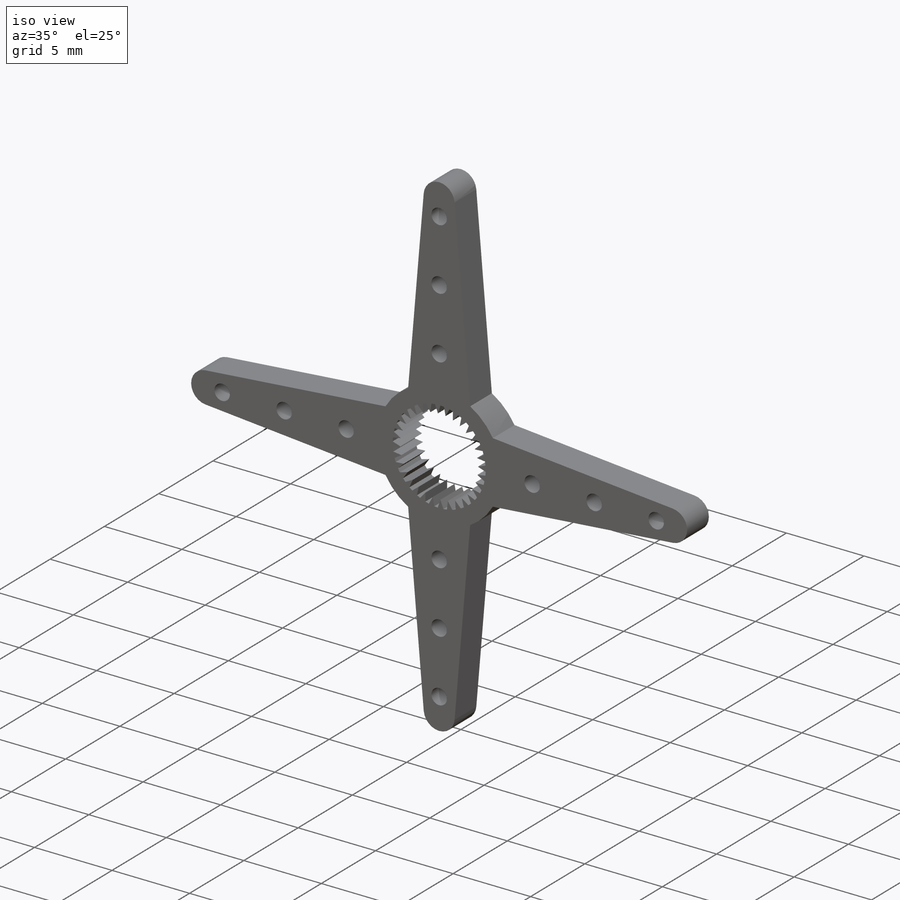
[diagram: iso view]
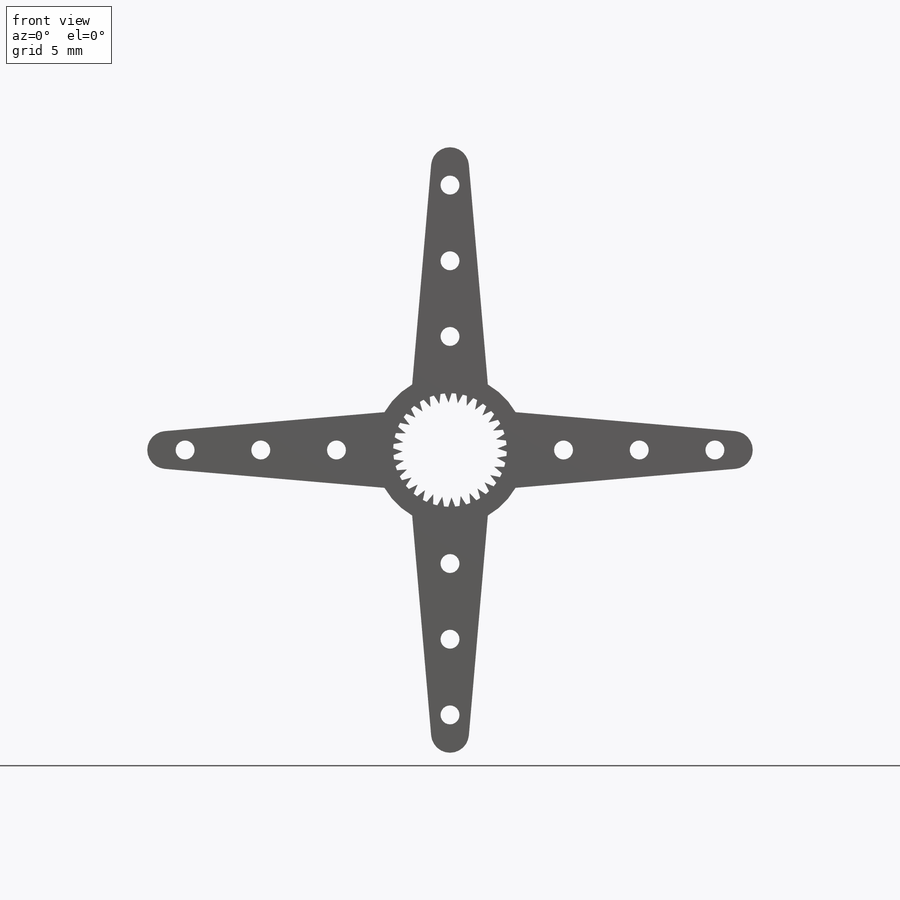
[diagram: front view]
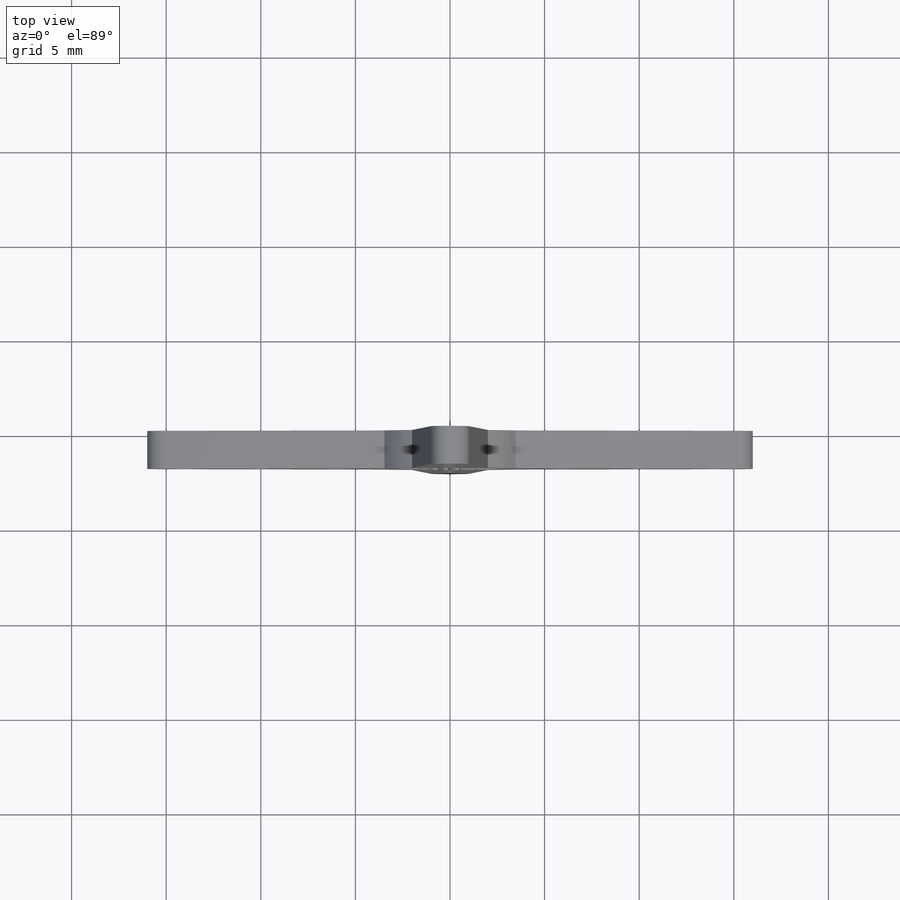
[diagram: top view]
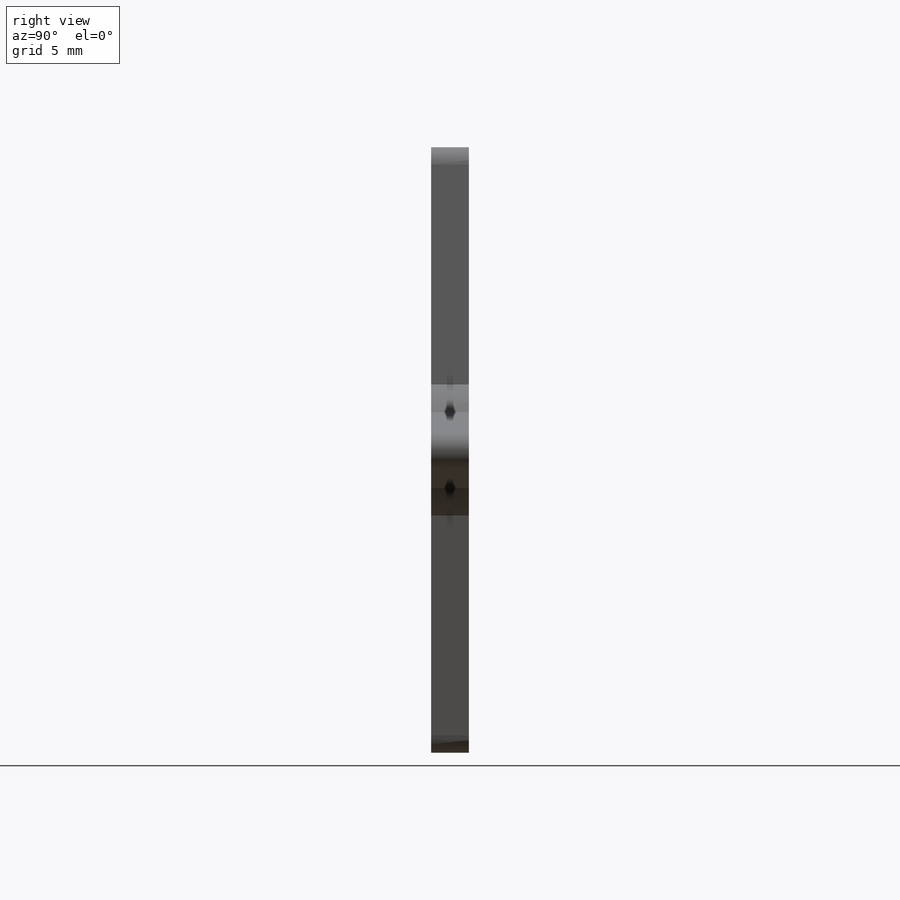
[diagram: right view]
SOLIDWORKS PART (.sldprt)
format: sldprt  version: not decoded by parser v0  size: 895,488 bytes
history: native  units: mm
features: sketch x3, cut_extrude x2, material x1, extrude x1, pattern_circular x1 (+15 scaffold rows collapsed)
feature tree (23):
  scaffold x15  (default folders/planes/origin — collapsed)
  material  "PVC Rigid"
  sketch  "Sketch1"  dims[c1.D1=8.0mm c1.D3=2.0mm c1.D2=15.0mm c1.D4=4.0mm c1.D5=~7.696789mm c2.D5=45.0deg c2.D6=~11.127207mm c3.D6=90.0deg]
  extrude  "Extrude1"  Depth=2mm
  sketch  "Sketch2"  dims[c1.D1=1.0mm c1.D2=1.0mm c1.D3=1.0mm c1.D8=1.0mm c1.D4=6.0mm c1.D5=1.5mm c1.D6=4.0mm c2.D5=4.0mm c2.D7=3.0mm]
  cut_extrude  "Cut-Extrude1"  Depth=2mm
  pattern_circular  "CirPattern1"  Count=4 Angle=360deg
  sketch  "Sketch3"  dims[D1=0.0mm]
  cut_extrude  "Cut-Extrude2"  Depth=2mm
decode coverage: 7 of 7 modeling features carry decoded parameters
note: ~ marks probable driven/reference dimensions
note: suppression state not decoded; provenance and decode notes live in map.json
